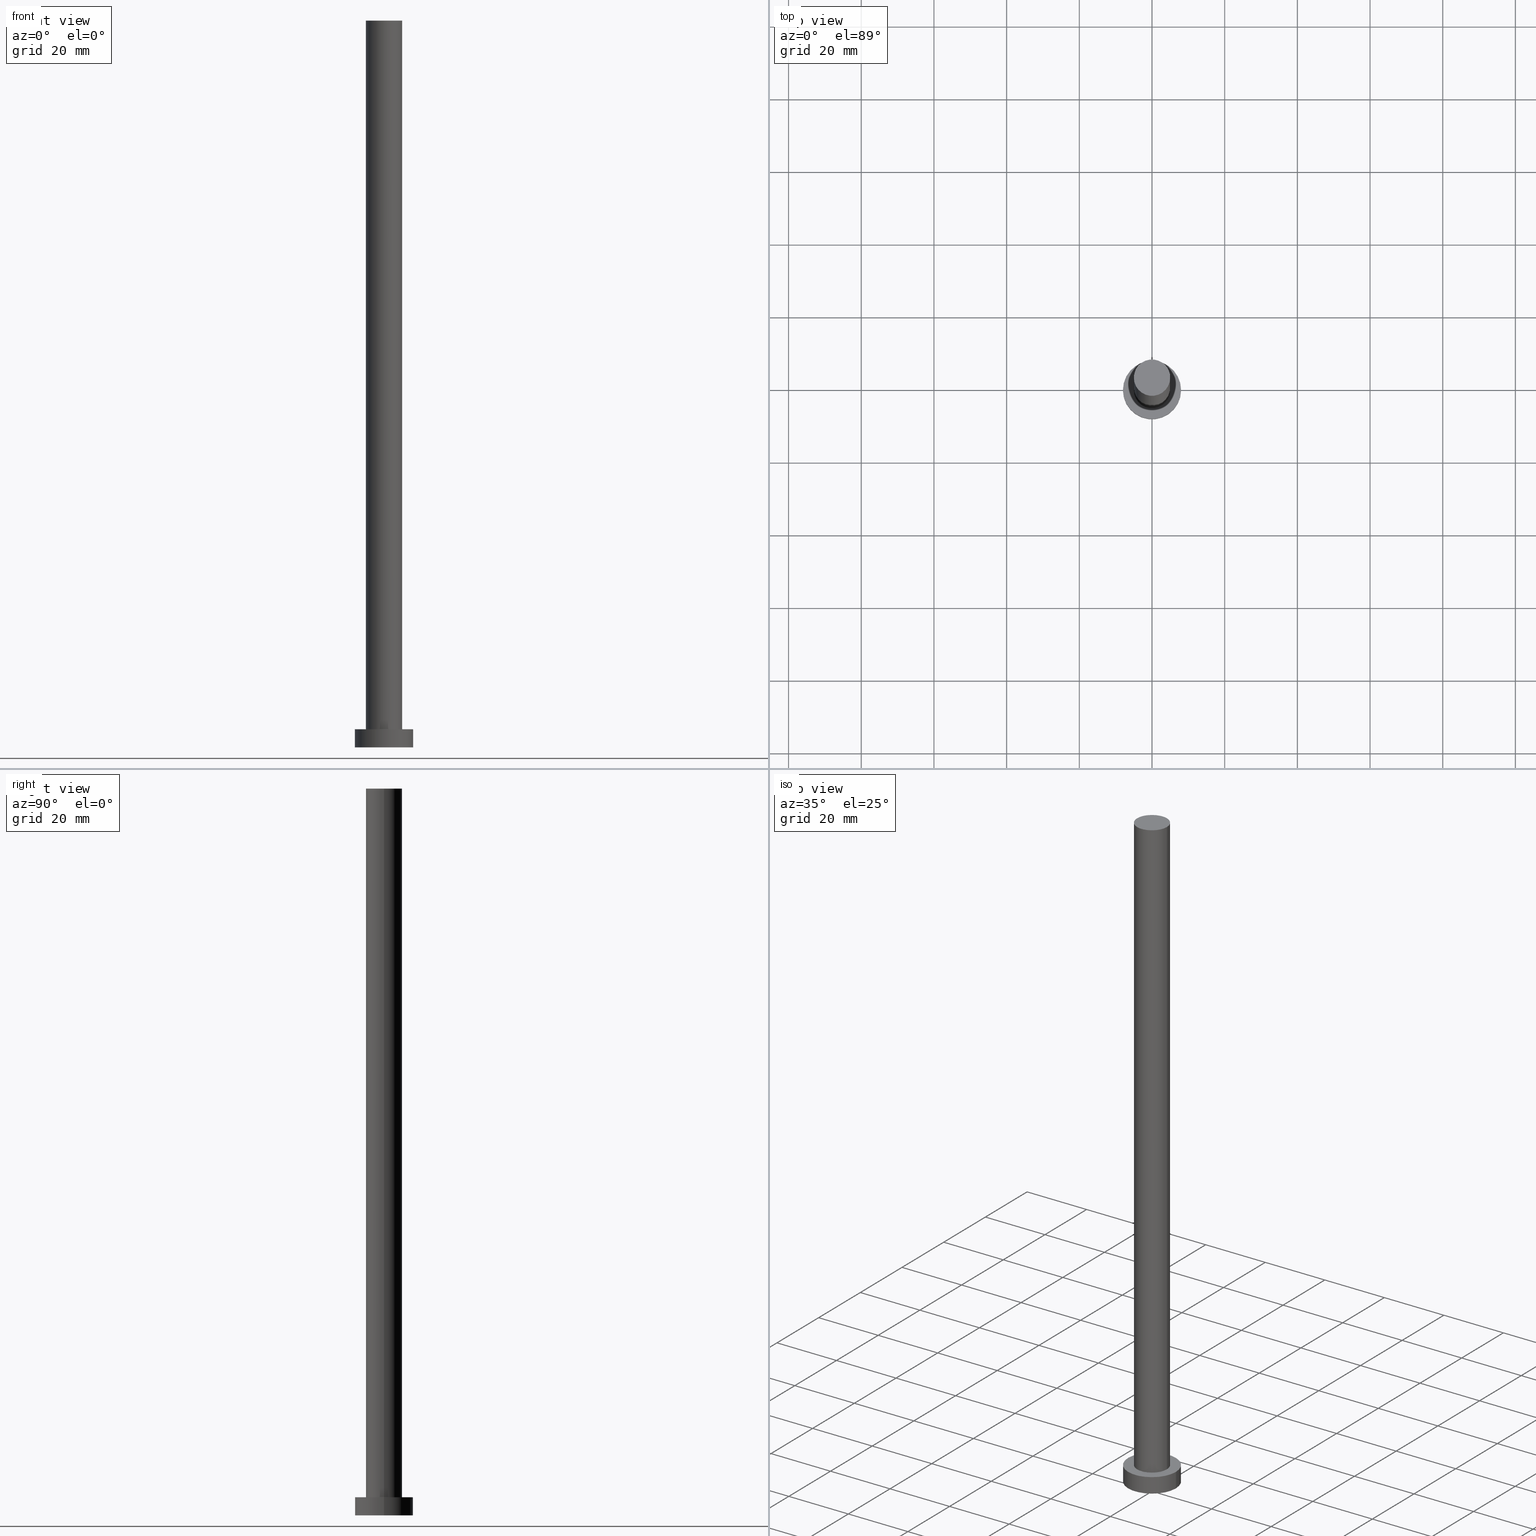
[diagram: canonical four-view strip — front | top / right | iso, engineering-drawing reading convention]
A machine part, canonical four-view strip (front | top / right | iso — engineering-drawing reading convention). The complete STEP part file that produces these views, byte-faithful:
ISO-10303-21;
HEADER;
FILE_DESCRIPTION (( 'STEP AP203' ),
    '1' );
FILE_NAME ('4276.STEP',
    '2023-02-13T12:06:47',
    ( '' ),
    ( '' ),
    'SwSTEP 2.0',
    'SolidWorks 2019',
    '' );
FILE_SCHEMA (( 'CONFIG_CONTROL_DESIGN' ));
ENDSEC;

DATA;
#1 = ORIENTED_EDGE ( 'NONE', *, *, #133, .T. ) ;
#2 = FACE_OUTER_BOUND ( 'NONE', #68, .T. ) ;
#3 = CARTESIAN_POINT ( 'NONE',  ( 0.000000000000000000, 0.000000000000000000, 5.000000000000000000 ) ) ;
#4 = AXIS2_PLACEMENT_3D ( 'NONE', #102, #179, #221 ) ;
#5 = CARTESIAN_POINT ( 'NONE',  ( -5.000000000000000888, 0.000000000000000000, 200.0000000000000000 ) ) ;
#6 = LINE ( 'NONE', #183, #137 ) ;
#7 = AXIS2_PLACEMENT_3D ( 'NONE', #180, #38, #146 ) ;
#8 = CALENDAR_DATE ( 2023, 13, 2 ) ;
#9 = ORIENTED_EDGE ( 'NONE', *, *, #222, .T. ) ;
#10 = PERSON_AND_ORGANIZATION_ROLE ( 'design_supplier' ) ;
#11 = COORDINATED_UNIVERSAL_TIME_OFFSET ( 1, 0, .AHEAD. ) ;
#12 = LOCAL_TIME ( 13, 6, 47.00000000000000000, #25 ) ;
#13 = PERSON_AND_ORGANIZATION ( #175, #65 ) ;
#14 = ORIENTED_EDGE ( 'NONE', *, *, #124, .T. ) ;
#15 = CIRCLE ( 'NONE', #31, 8.000000000000000000 ) ;
#16 = FACE_BOUND ( 'NONE', #114, .T. ) ;
#17 = ORIENTED_EDGE ( 'NONE', *, *, #236, .F. ) ;
#18 = DIRECTION ( 'NONE',  ( 0.000000000000000000, 0.000000000000000000, 1.000000000000000000 ) ) ;
#19 = DIRECTION ( 'NONE',  ( 0.000000000000000000, 0.000000000000000000, 1.000000000000000000 ) ) ;
#20 = DIRECTION ( 'NONE',  ( 0.000000000000000000, 0.000000000000000000, 1.000000000000000000 ) ) ;
#21 = CARTESIAN_POINT ( 'NONE',  ( -8.000000000000000000, 0.000000000000000000, 5.000000000000000000 ) ) ;
#22 = CC_DESIGN_APPROVAL ( #203, ( #248 ) ) ;
#23 = DIRECTION ( 'NONE',  ( -0.000000000000000000, -0.000000000000000000, -1.000000000000000000 ) ) ;
#24 = DATE_AND_TIME ( #207, #140 ) ;
#25 = COORDINATED_UNIVERSAL_TIME_OFFSET ( 1, 0, .AHEAD. ) ;
#26 = APPROVAL_PERSON_ORGANIZATION ( #67, #107, #87 ) ;
#27 = CARTESIAN_POINT ( 'NONE',  ( 0.000000000000000000, 0.000000000000000000, 0.000000000000000000 ) ) ;
#28 = PERSON_AND_ORGANIZATION ( #175, #65 ) ;
#29 = DATE_AND_TIME ( #72, #43 ) ;
#30 = ORIENTED_EDGE ( 'NONE', *, *, #222, .F. ) ;
#31 = AXIS2_PLACEMENT_3D ( 'NONE', #34, #76, #98 ) ;
#32 = FACE_OUTER_BOUND ( 'NONE', #152, .T. ) ;
#33 = DIRECTION ( 'NONE',  ( 0.000000000000000000, 0.000000000000000000, 1.000000000000000000 ) ) ;
#34 = CARTESIAN_POINT ( 'NONE',  ( 0.000000000000000000, 0.000000000000000000, 5.000000000000000000 ) ) ;
#35 = APPROVAL_PERSON_ORGANIZATION ( #13, #126, #69 ) ;
#36 = CC_DESIGN_PERSON_AND_ORGANIZATION_ASSIGNMENT ( #185, #106, ( #100 ) ) ;
#37 = EDGE_LOOP ( 'NONE', ( #97, #157, #189, #251 ) ) ;
#38 = DIRECTION ( 'NONE',  ( -0.000000000000000000, -0.000000000000000000, -1.000000000000000000 ) ) ;
#39 = CYLINDRICAL_SURFACE ( 'NONE', #93, 8.000000000000000000 ) ;
#40 = CARTESIAN_POINT ( 'NONE',  ( 0.000000000000000000, 0.000000000000000000, 5.000000000000000000 ) ) ;
#41 = CARTESIAN_POINT ( 'NONE',  ( 0.000000000000000000, 0.000000000000000000, 5.000000000000000000 ) ) ;
#42 = DIRECTION ( 'NONE',  ( 0.000000000000000000, 0.000000000000000000, 1.000000000000000000 ) ) ;
#43 = LOCAL_TIME ( 13, 6, 47.00000000000000000, #212 ) ;
#44 = CALENDAR_DATE ( 2023, 13, 2 ) ;
#45 = DIRECTION ( 'NONE',  ( 0.000000000000000000, 0.000000000000000000, 1.000000000000000000 ) ) ;
#46 = APPROVAL_ROLE ( '' ) ;
#47 = AXIS2_PLACEMENT_3D ( 'NONE', #198, #123, #160 ) ;
#48 = SHAPE_DEFINITION_REPRESENTATION ( #168, #191 ) ;
#49 = DATE_TIME_ROLE ( 'creation_date' ) ;
#50 = ADVANCED_FACE ( 'NONE', ( #2 ), #155, .T. ) ;
#51 = AXIS2_PLACEMENT_3D ( 'NONE', #60, #19, #143 ) ;
#52 = APPLICATION_CONTEXT ( 'configuration controlled 3d designs of mechanical parts and assemblies' ) ;
#53 = ORIENTED_EDGE ( 'NONE', *, *, #141, .T. ) ;
#54 = CC_DESIGN_DATE_AND_TIME_ASSIGNMENT ( #243, #66, ( #217 ) ) ;
#55 = AXIS2_PLACEMENT_3D ( 'NONE', #58, #103, #125 ) ;
#56 = DIRECTION ( 'NONE',  ( 1.000000000000000000, 0.000000000000000000, -0.000000000000000000 ) ) ;
#57 = EDGE_CURVE ( 'NONE', #194, #213, #15, .T. ) ;
#58 = CARTESIAN_POINT ( 'NONE',  ( 0.000000000000000000, 0.000000000000000000, 200.0000000000000000 ) ) ;
#59 = CC_DESIGN_APPROVAL ( #126, ( #127 ) ) ;
#60 = CARTESIAN_POINT ( 'NONE',  ( 0.000000000000000000, 0.000000000000000000, 200.0000000000000000 ) ) ;
#61 = DESIGN_CONTEXT ( 'detailed design', #52, 'design' ) ;
#62 = CYLINDRICAL_SURFACE ( 'NONE', #7, 5.000000000000000888 ) ;
#63 = CC_DESIGN_DATE_AND_TIME_ASSIGNMENT ( #91, #49, ( #248 ) ) ;
#64 = CARTESIAN_POINT ( 'NONE',  ( 0.000000000000000000, 0.000000000000000000, 0.000000000000000000 ) ) ;
#65 = ORGANIZATION ( 'NEUR�EN�', 'NEUR�EN�', '' ) ;
#66 = DATE_TIME_ROLE ( 'classification_date' ) ;
#67 = PERSON_AND_ORGANIZATION ( #175, #65 ) ;
#68 = EDGE_LOOP ( 'NONE', ( #209, #214 ) ) ;
#69 = APPROVAL_ROLE ( '' ) ;
#70 = EDGE_LOOP ( 'NONE', ( #17, #245, #136, #1 ) ) ;
#71 = CIRCLE ( 'NONE', #51, 5.000000000000000888 ) ;
#72 = CALENDAR_DATE ( 2023, 13, 2 ) ;
#73 = ADVANCED_FACE ( 'NONE', ( #16, #138 ), #156, .T. ) ;
#74 = ORIENTED_EDGE ( 'NONE', *, *, #57, .F. ) ;
#75 = AXIS2_PLACEMENT_3D ( 'NONE', #231, #18, #237 ) ;
#76 = DIRECTION ( 'NONE',  ( 0.000000000000000000, 0.000000000000000000, 1.000000000000000000 ) ) ;
#77 = CARTESIAN_POINT ( 'NONE',  ( 8.000000000000000000, 9.797174393178825657E-16, 5.000000000000000000 ) ) ;
#78 = ADVANCED_FACE ( 'NONE', ( #32 ), #115, .T. ) ;
#79 = VERTEX_POINT ( 'NONE', #255 ) ;
#80 = CC_DESIGN_PERSON_AND_ORGANIZATION_ASSIGNMENT ( #149, #188, ( #127 ) ) ;
#81 = CIRCLE ( 'NONE', #234, 8.000000000000000000 ) ;
#82 = EDGE_CURVE ( 'NONE', #194, #79, #232, .T. ) ;
#83 = DIRECTION ( 'NONE',  ( 0.000000000000000000, 0.000000000000000000, 1.000000000000000000 ) ) ;
#84 = VECTOR ( 'NONE', #139, 1000.000000000000000 ) ;
#85 = ADVANCED_FACE ( 'NONE', ( #215 ), #117, .F. ) ;
#86 = FACE_OUTER_BOUND ( 'NONE', #70, .T. ) ;
#87 = APPROVAL_ROLE ( '' ) ;
#88 = CIRCLE ( 'NONE', #199, 8.000000000000000000 ) ;
#89 = PERSON_AND_ORGANIZATION ( #175, #65 ) ;
#90 = COORDINATED_UNIVERSAL_TIME_OFFSET ( 1, 0, .AHEAD. ) ;
#91 = DATE_AND_TIME ( #108, #12 ) ;
#92 = ORIENTED_EDGE ( 'NONE', *, *, #124, .F. ) ;
#93 = AXIS2_PLACEMENT_3D ( 'NONE', #3, #202, #145 ) ;
#94 = EDGE_CURVE ( 'NONE', #197, #186, #170, .T. ) ;
#95 = ORIENTED_EDGE ( 'NONE', *, *, #141, .F. ) ;
#96 = DIRECTION ( 'NONE',  ( -1.000000000000000000, 0.000000000000000000, 0.000000000000000000 ) ) ;
#97 = ORIENTED_EDGE ( 'NONE', *, *, #130, .F. ) ;
#98 = DIRECTION ( 'NONE',  ( 1.000000000000000000, 0.000000000000000000, 0.000000000000000000 ) ) ;
#99 = APPROVAL_PERSON_ORGANIZATION ( #28, #203, #46 ) ;
#100 = PRODUCT ( '4276', '4276', '', ( #208 ) ) ;
#101 = FACE_OUTER_BOUND ( 'NONE', #37, .T. ) ;
#102 = CARTESIAN_POINT ( 'NONE',  ( 0.000000000000000000, 0.000000000000000000, 5.000000000000000000 ) ) ;
#103 = DIRECTION ( 'NONE',  ( 0.000000000000000000, 0.000000000000000000, 1.000000000000000000 ) ) ;
#104 = FACE_OUTER_BOUND ( 'NONE', #134, .T. ) ;
#105 = UNCERTAINTY_MEASURE_WITH_UNIT (LENGTH_MEASURE( 1.000000000000000082E-05 ), #178, 'distance_accuracy_value', 'NONE');
#106 = PERSON_AND_ORGANIZATION_ROLE ( 'design_owner' ) ;
#107 = APPROVAL ( #153, 'NEUR�EN�' ) ;
#108 = CALENDAR_DATE ( 2023, 13, 2 ) ;
#109 = VECTOR ( 'NONE', #238, 1000.000000000000000 ) ;
#110 = PERSON_AND_ORGANIZATION ( #175, #65 ) ;
#111 = CC_DESIGN_PERSON_AND_ORGANIZATION_ASSIGNMENT ( #110, #187, ( #248 ) ) ;
#112 = ORIENTED_EDGE ( 'NONE', *, *, #133, .F. ) ;
#113 = APPLICATION_PROTOCOL_DEFINITION ( 'international standard', 'config_control_design', 1994, #52 ) ;
#114 = EDGE_LOOP ( 'NONE', ( #112, #235 ) ) ;
#115 = CYLINDRICAL_SURFACE ( 'NONE', #193, 8.000000000000000000 ) ;
#116 = ADVANCED_FACE ( 'NONE', ( #86 ), #122, .T. ) ;
#117 = PLANE ( 'NONE',  #200 ) ;
#118 = AXIS2_PLACEMENT_3D ( 'NONE', #40, #20, #148 ) ;
#119 = VERTEX_POINT ( 'NONE', #164 ) ;
#120 = CARTESIAN_POINT ( 'NONE',  ( 0.000000000000000000, 0.000000000000000000, 0.000000000000000000 ) ) ;
#121 = AXIS2_PLACEMENT_3D ( 'NONE', #41, #239, #201 ) ;
#122 = CYLINDRICAL_SURFACE ( 'NONE', #47, 5.000000000000000888 ) ;
#123 = DIRECTION ( 'NONE',  ( -0.000000000000000000, -0.000000000000000000, -1.000000000000000000 ) ) ;
#124 = EDGE_CURVE ( 'NONE', #213, #194, #173, .T. ) ;
#125 = DIRECTION ( 'NONE',  ( 1.000000000000000000, 0.000000000000000000, 0.000000000000000000 ) ) ;
#126 = APPROVAL ( #171, 'NEUR�EN�' ) ;
#127 = PRODUCT_DEFINITION_FORMATION_WITH_SPECIFIED_SOURCE ( 'LIBOVOLN�', '', #100, .NOT_KNOWN. ) ;
#128 = DIRECTION ( 'NONE',  ( 1.000000000000000000, 0.000000000000000000, 0.000000000000000000 ) ) ;
#129 = DIRECTION ( 'NONE',  ( 1.000000000000000000, 0.000000000000000000, 0.000000000000000000 ) ) ;
#130 = EDGE_CURVE ( 'NONE', #195, #119, #71, .T. ) ;
#131 = APPROVAL_DATE_TIME ( #29, #203 ) ;
#132 = AXIS2_PLACEMENT_3D ( 'NONE', #176, #33, #56 ) ;
#133 = EDGE_CURVE ( 'NONE', #186, #197, #230, .T. ) ;
#134 = EDGE_LOOP ( 'NONE', ( #74, #247, #53, #30 ) ) ;
#135 = APPLICATION_PROTOCOL_DEFINITION ( 'international standard', 'config_control_design', 1994, #196 ) ;
#136 = ORIENTED_EDGE ( 'NONE', *, *, #159, .T. ) ;
#137 = VECTOR ( 'NONE', #182, 1000.000000000000000 ) ;
#138 = FACE_OUTER_BOUND ( 'NONE', #154, .T. ) ;
#139 = DIRECTION ( 'NONE',  ( -0.000000000000000000, -0.000000000000000000, -1.000000000000000000 ) ) ;
#140 = LOCAL_TIME ( 13, 6, 47.00000000000000000, #90 ) ;
#141 = EDGE_CURVE ( 'NONE', #79, #253, #88, .T. ) ;
#142 = CARTESIAN_POINT ( 'NONE',  ( 8.000000000000000000, 9.797174393178825657E-16, 5.000000000000000000 ) ) ;
#143 = DIRECTION ( 'NONE',  ( 1.000000000000000000, 0.000000000000000000, 0.000000000000000000 ) ) ;
#144 =( GEOMETRIC_REPRESENTATION_CONTEXT ( 3 ) GLOBAL_UNCERTAINTY_ASSIGNED_CONTEXT ( ( #105 ) ) GLOBAL_UNIT_ASSIGNED_CONTEXT ( ( #178, #228, #226 ) ) REPRESENTATION_CONTEXT ( 'NONE', 'WORKASPACE' ) );
#145 = DIRECTION ( 'NONE',  ( -1.000000000000000000, 0.000000000000000000, 0.000000000000000000 ) ) ;
#146 = DIRECTION ( 'NONE',  ( -1.000000000000000000, 0.000000000000000000, 0.000000000000000000 ) ) ;
#147 = MANIFOLD_SOLID_BREP ( 'P�idat vysunut�m3', #161 ) ;
#148 = DIRECTION ( 'NONE',  ( 1.000000000000000000, 0.000000000000000000, 0.000000000000000000 ) ) ;
#149 = PERSON_AND_ORGANIZATION ( #175, #65 ) ;
#150 = APPROVAL_DATE_TIME ( #169, #126 ) ;
#151 = CIRCLE ( 'NONE', #55, 5.000000000000000888 ) ;
#152 = EDGE_LOOP ( 'NONE', ( #229, #92, #9, #167 ) ) ;
#153 = APPROVAL_STATUS ( 'not_yet_approved' ) ;
#154 = EDGE_LOOP ( 'NONE', ( #14, #218 ) ) ;
#155 = PLANE ( 'NONE',  #75 ) ;
#156 = PLANE ( 'NONE',  #132 ) ;
#157 = ORIENTED_EDGE ( 'NONE', *, *, #236, .T. ) ;
#158 = CC_DESIGN_PERSON_AND_ORGANIZATION_ASSIGNMENT ( #89, #10, ( #127 ) ) ;
#159 = EDGE_CURVE ( 'NONE', #119, #186, #220, .T. ) ;
#160 = DIRECTION ( 'NONE',  ( -1.000000000000000000, 0.000000000000000000, 0.000000000000000000 ) ) ;
#161 = CLOSED_SHELL ( 'NONE', ( #219, #174, #78, #73, #85, #116, #50 ) ) ;
#162 = DIRECTION ( 'NONE',  ( 1.000000000000000000, 0.000000000000000000, -0.000000000000000000 ) ) ;
#163 = CARTESIAN_POINT ( 'NONE',  ( -5.000000000000000888, 0.000000000000000000, 5.000000000000000000 ) ) ;
#164 = CARTESIAN_POINT ( 'NONE',  ( -5.000000000000000888, 0.000000000000000000, 200.0000000000000000 ) ) ;
#165 = EDGE_LOOP ( 'NONE', ( #172, #95 ) ) ;
#166 = PERSON_AND_ORGANIZATION ( #175, #65 ) ;
#167 = ORIENTED_EDGE ( 'NONE', *, *, #252, .T. ) ;
#168 = PRODUCT_DEFINITION_SHAPE ( 'NONE', 'NONE',  #248 ) ;
#169 = DATE_AND_TIME ( #8, #181 ) ;
#170 = CIRCLE ( 'NONE', #118, 5.000000000000000888 ) ;
#171 = APPROVAL_STATUS ( 'not_yet_approved' ) ;
#172 = ORIENTED_EDGE ( 'NONE', *, *, #252, .F. ) ;
#173 = CIRCLE ( 'NONE', #121, 8.000000000000000000 ) ;
#174 = ADVANCED_FACE ( 'NONE', ( #104 ), #39, .T. ) ;
#175 = PERSON ( 'NEUR�EN�', 'NEUR�EN�', 'NEUR�EN�', ('NEUR�EN�'), ('NEUR�EN�'), ('NEUR�EN�') ) ;
#176 = CARTESIAN_POINT ( 'NONE',  ( 0.000000000000000000, 0.000000000000000000, 5.000000000000000000 ) ) ;
#177 = VECTOR ( 'NONE', #23, 1000.000000000000000 ) ;
#178 =( LENGTH_UNIT ( ) NAMED_UNIT ( * ) SI_UNIT ( .MILLI., .METRE. ) );
#179 = DIRECTION ( 'NONE',  ( 0.000000000000000000, 0.000000000000000000, 1.000000000000000000 ) ) ;
#180 = CARTESIAN_POINT ( 'NONE',  ( 0.000000000000000000, 0.000000000000000000, 200.0000000000000000 ) ) ;
#181 = LOCAL_TIME ( 13, 6, 47.00000000000000000, #11 ) ;
#182 = DIRECTION ( 'NONE',  ( -0.000000000000000000, -0.000000000000000000, -1.000000000000000000 ) ) ;
#183 = CARTESIAN_POINT ( 'NONE',  ( 5.000000000000000888, 6.123233995736767268E-16, 200.0000000000000000 ) ) ;
#184 = COORDINATED_UNIVERSAL_TIME_OFFSET ( 1, 0, .AHEAD. ) ;
#185 = PERSON_AND_ORGANIZATION ( #175, #65 ) ;
#186 = VERTEX_POINT ( 'NONE', #163 ) ;
#187 = PERSON_AND_ORGANIZATION_ROLE ( 'creator' ) ;
#188 = PERSON_AND_ORGANIZATION_ROLE ( 'creator' ) ;
#189 = ORIENTED_EDGE ( 'NONE', *, *, #94, .T. ) ;
#190 = CARTESIAN_POINT ( 'NONE',  ( 0.000000000000000000, 0.000000000000000000, 5.000000000000000000 ) ) ;
#191 = ADVANCED_BREP_SHAPE_REPRESENTATION ( '4276', ( #147, #225 ), #144 ) ;
#192 = DIRECTION ( 'NONE',  ( -0.000000000000000000, -0.000000000000000000, -1.000000000000000000 ) ) ;
#193 = AXIS2_PLACEMENT_3D ( 'NONE', #190, #192, #96 ) ;
#194 = VERTEX_POINT ( 'NONE', #142 ) ;
#195 = VERTEX_POINT ( 'NONE', #240 ) ;
#196 = APPLICATION_CONTEXT ( 'configuration controlled 3d designs of mechanical parts and assemblies' ) ;
#197 = VERTEX_POINT ( 'NONE', #241 ) ;
#198 = CARTESIAN_POINT ( 'NONE',  ( 0.000000000000000000, 0.000000000000000000, 200.0000000000000000 ) ) ;
#199 = AXIS2_PLACEMENT_3D ( 'NONE', #120, #242, #223 ) ;
#200 = AXIS2_PLACEMENT_3D ( 'NONE', #233, #83, #162 ) ;
#201 = DIRECTION ( 'NONE',  ( 1.000000000000000000, 0.000000000000000000, 0.000000000000000000 ) ) ;
#202 = DIRECTION ( 'NONE',  ( -0.000000000000000000, -0.000000000000000000, -1.000000000000000000 ) ) ;
#203 = APPROVAL ( #246, 'NEUR�EN�' ) ;
#204 = CARTESIAN_POINT ( 'NONE',  ( -8.000000000000000000, 0.000000000000000000, 5.000000000000000000 ) ) ;
#205 = CC_DESIGN_APPROVAL ( #107, ( #217 ) ) ;
#206 = CARTESIAN_POINT ( 'NONE',  ( -8.000000000000000000, 0.000000000000000000, 0.000000000000000000 ) ) ;
#207 = CALENDAR_DATE ( 2023, 13, 2 ) ;
#208 = MECHANICAL_CONTEXT ( 'NONE', #196, 'mechanical' ) ;
#209 = ORIENTED_EDGE ( 'NONE', *, *, #216, .T. ) ;
#210 = CC_DESIGN_PERSON_AND_ORGANIZATION_ASSIGNMENT ( #166, #244, ( #217 ) ) ;
#211 = CC_DESIGN_SECURITY_CLASSIFICATION ( #217, ( #127 ) ) ;
#212 = COORDINATED_UNIVERSAL_TIME_OFFSET ( 1, 0, .AHEAD. ) ;
#213 = VERTEX_POINT ( 'NONE', #21 ) ;
#214 = ORIENTED_EDGE ( 'NONE', *, *, #130, .T. ) ;
#215 = FACE_OUTER_BOUND ( 'NONE', #165, .T. ) ;
#216 = EDGE_CURVE ( 'NONE', #119, #195, #151, .T. ) ;
#217 = SECURITY_CLASSIFICATION ( '', '', #250 ) ;
#218 = ORIENTED_EDGE ( 'NONE', *, *, #57, .T. ) ;
#219 = ADVANCED_FACE ( 'NONE', ( #101 ), #62, .T. ) ;
#220 = LINE ( 'NONE', #5, #109 ) ;
#221 = DIRECTION ( 'NONE',  ( 1.000000000000000000, 0.000000000000000000, 0.000000000000000000 ) ) ;
#222 = EDGE_CURVE ( 'NONE', #213, #253, #224, .T. ) ;
#223 = DIRECTION ( 'NONE',  ( 1.000000000000000000, 0.000000000000000000, 0.000000000000000000 ) ) ;
#224 = LINE ( 'NONE', #204, #177 ) ;
#225 = AXIS2_PLACEMENT_3D ( 'NONE', #27, #45, #129 ) ;
#226 =( NAMED_UNIT ( * ) SI_UNIT ( $, .STERADIAN. ) SOLID_ANGLE_UNIT ( ) );
#227 = APPROVAL_DATE_TIME ( #24, #107 ) ;
#228 =( NAMED_UNIT ( * ) PLANE_ANGLE_UNIT ( ) SI_UNIT ( $, .RADIAN. ) );
#229 = ORIENTED_EDGE ( 'NONE', *, *, #82, .F. ) ;
#230 = CIRCLE ( 'NONE', #4, 5.000000000000000888 ) ;
#231 = CARTESIAN_POINT ( 'NONE',  ( 0.000000000000000000, 0.000000000000000000, 200.0000000000000000 ) ) ;
#232 = LINE ( 'NONE', #77, #84 ) ;
#233 = CARTESIAN_POINT ( 'NONE',  ( 0.000000000000000000, 0.000000000000000000, 0.000000000000000000 ) ) ;
#234 = AXIS2_PLACEMENT_3D ( 'NONE', #64, #42, #128 ) ;
#235 = ORIENTED_EDGE ( 'NONE', *, *, #94, .F. ) ;
#236 = EDGE_CURVE ( 'NONE', #195, #197, #6, .T. ) ;
#237 = DIRECTION ( 'NONE',  ( 1.000000000000000000, 0.000000000000000000, -0.000000000000000000 ) ) ;
#238 = DIRECTION ( 'NONE',  ( -0.000000000000000000, -0.000000000000000000, -1.000000000000000000 ) ) ;
#239 = DIRECTION ( 'NONE',  ( 0.000000000000000000, 0.000000000000000000, 1.000000000000000000 ) ) ;
#240 = CARTESIAN_POINT ( 'NONE',  ( 5.000000000000000888, 6.123233995736767268E-16, 200.0000000000000000 ) ) ;
#241 = CARTESIAN_POINT ( 'NONE',  ( 5.000000000000000888, 6.123233995736767268E-16, 5.000000000000000000 ) ) ;
#242 = DIRECTION ( 'NONE',  ( 0.000000000000000000, 0.000000000000000000, 1.000000000000000000 ) ) ;
#243 = DATE_AND_TIME ( #44, #249 ) ;
#244 = PERSON_AND_ORGANIZATION_ROLE ( 'classification_officer' ) ;
#245 = ORIENTED_EDGE ( 'NONE', *, *, #216, .F. ) ;
#246 = APPROVAL_STATUS ( 'not_yet_approved' ) ;
#247 = ORIENTED_EDGE ( 'NONE', *, *, #82, .T. ) ;
#248 = PRODUCT_DEFINITION ( 'NEZN�M�', '', #127, #61 ) ;
#249 = LOCAL_TIME ( 13, 6, 47.00000000000000000, #184 ) ;
#250 = SECURITY_CLASSIFICATION_LEVEL ( 'unclassified' ) ;
#251 = ORIENTED_EDGE ( 'NONE', *, *, #159, .F. ) ;
#252 = EDGE_CURVE ( 'NONE', #253, #79, #81, .T. ) ;
#253 = VERTEX_POINT ( 'NONE', #206 ) ;
#254 = PRODUCT_RELATED_PRODUCT_CATEGORY ( 'detail', '', ( #100 ) ) ;
#255 = CARTESIAN_POINT ( 'NONE',  ( 8.000000000000000000, 9.797174393178825657E-16, 0.000000000000000000 ) ) ;
ENDSEC;
END-ISO-10303-21;
